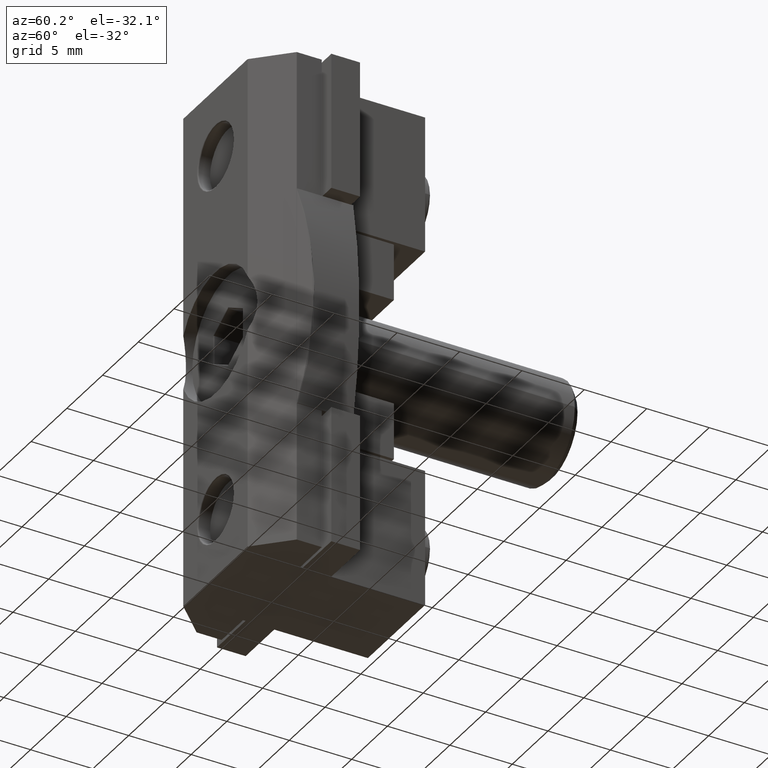
[diagram: clean part render]
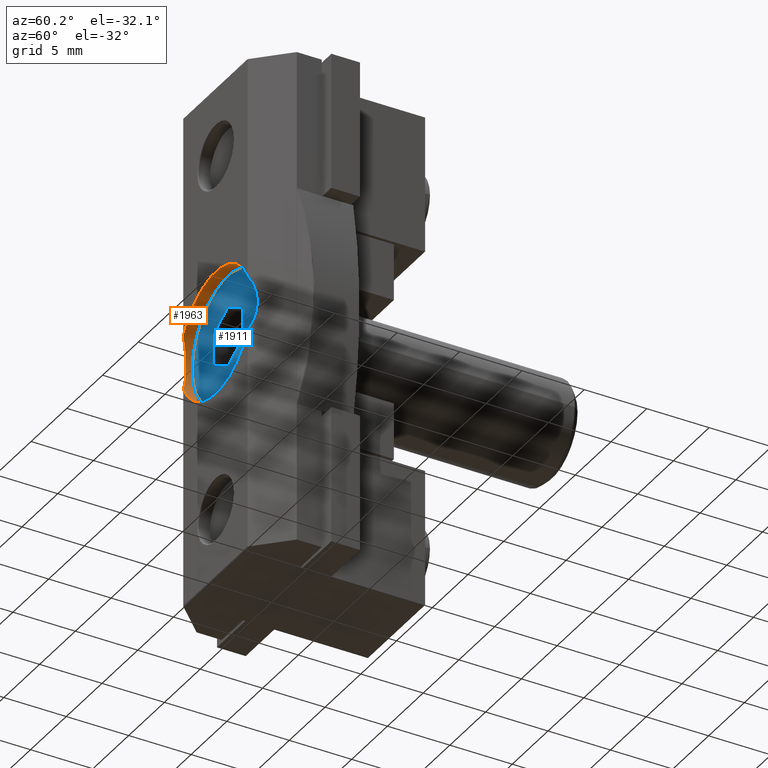
[diagram: same view with the hole feature highlighted: cylindrical wall and planar end face, labeled with their STEP entity ids]
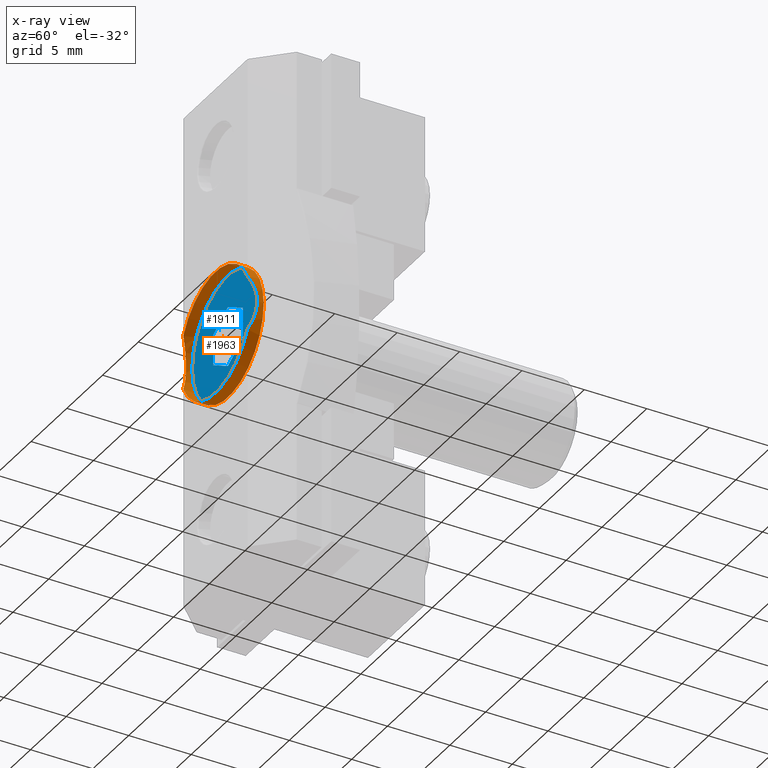
[diagram: x-ray of the same camera — body ghosted, the hole faces saturated]
A machine part, auxiliary view. The highlighted faces form one hole feature of diameter 10 mm: the cylindrical wall (entity #1963, orange) and its adjacent planar end face (entity #1911, blue) — they share a circular edge in the B-rep.
The next image is the same camera in x-ray (body ghosted, the hole faces saturated) — the bore reads through the body.
Wall:
#38=CIRCLE('',#2049,5.);
#57=CIRCLE('',#2107,5.);
#65=CIRCLE('',#2127,5.);
#209=FACE_OUTER_BOUND('',#327,.T.);
#327=EDGE_LOOP('',(#1603,#1604,#1605,#1606,#1607,#1608,#1609,#1610));
#400=ELLIPSE('',#2143,7.07106781186548,5.);
#401=ELLIPSE('',#2144,7.07106781186548,5.);
#402=ELLIPSE('',#2145,7.07106781186548,5.);
#512=LINE('',#3179,#731);
#731=VECTOR('',#2534,5.);
#857=VERTEX_POINT('',#2804);
#905=VERTEX_POINT('',#2951);
#906=VERTEX_POINT('',#2952);
#939=VERTEX_POINT('',#3116);
#940=VERTEX_POINT('',#3117);
#957=VERTEX_POINT('',#3177);
#1049=EDGE_CURVE('',#857,#857,#38,.T.);
#1121=EDGE_CURVE('',#905,#906,#57,.T.);
#1164=EDGE_CURVE('',#939,#940,#65,.T.);
#1191=EDGE_CURVE('',#906,#939,#400,.T.);
#1192=EDGE_CURVE('',#957,#905,#401,.T.);
#1193=EDGE_CURVE('',#957,#857,#512,.T.);
#1194=EDGE_CURVE('',#940,#957,#402,.T.);
#1603=ORIENTED_EDGE('',*,*,#1191,.F.);
#1604=ORIENTED_EDGE('',*,*,#1121,.F.);
#1605=ORIENTED_EDGE('',*,*,#1192,.F.);
#1606=ORIENTED_EDGE('',*,*,#1193,.T.);
#1607=ORIENTED_EDGE('',*,*,#1049,.T.);
#1608=ORIENTED_EDGE('',*,*,#1193,.F.);
#1609=ORIENTED_EDGE('',*,*,#1194,.F.);
#1610=ORIENTED_EDGE('',*,*,#1164,.F.);
#1899=CYLINDRICAL_SURFACE('',#2142,5.);
#1963=ADVANCED_FACE('',(#209),#1899,.F.);
#2049=AXIS2_PLACEMENT_3D('',#2805,#2252,#2253);
#2107=AXIS2_PLACEMENT_3D('',#2953,#2409,#2410);
#2127=AXIS2_PLACEMENT_3D('',#3118,#2472,#2473);
#2142=AXIS2_PLACEMENT_3D('',#3175,#2528,#2529);
#2143=AXIS2_PLACEMENT_3D('',#3176,#2530,#2531);
#2144=AXIS2_PLACEMENT_3D('',#3178,#2532,#2533);
#2145=AXIS2_PLACEMENT_3D('',#3180,#2535,#2536);
#2252=DIRECTION('center_axis',(0.,1.,0.));
#2253=DIRECTION('ref_axis',(-1.,0.,0.));
#2409=DIRECTION('center_axis',(0.,1.,0.));
#2410=DIRECTION('ref_axis',(-1.,0.,0.));
#2472=DIRECTION('center_axis',(0.,1.,0.));
#2473=DIRECTION('ref_axis',(-1.,0.,0.));
#2528=DIRECTION('center_axis',(0.,1.,0.));
#2529=DIRECTION('ref_axis',(-1.,0.,0.));
#2530=DIRECTION('center_axis',(0.707106781186548,0.707106781186548,0.));
#2531=DIRECTION('ref_axis',(-0.707106781186547,0.707106781186547,0.));
#2532=DIRECTION('center_axis',(-0.707106781186548,0.707106781186548,0.));
#2533=DIRECTION('ref_axis',(-0.707106781186547,-0.707106781186547,0.));
#2534=DIRECTION('',(0.,1.,0.));
#2535=DIRECTION('center_axis',(-0.707106781186548,0.707106781186548,0.));
#2536=DIRECTION('ref_axis',(-0.707106781186547,-0.707106781186547,0.));
#2804=CARTESIAN_POINT('',(5.,-3.5,6.12323399573677E-16));
#2805=CARTESIAN_POINT('Origin',(0.,-3.5,0.));
#2951=CARTESIAN_POINT('',(4.5,-4.5,-2.17944947177034));
#2952=CARTESIAN_POINT('',(-4.5,-4.5,-2.17944947177034));
#2953=CARTESIAN_POINT('Origin',(0.,-4.5,0.));
#3116=CARTESIAN_POINT('',(-4.5,-4.5,2.17944947177034));
#3117=CARTESIAN_POINT('',(4.5,-4.5,2.17944947177034));
#3118=CARTESIAN_POINT('Origin',(0.,-4.5,0.));
#3175=CARTESIAN_POINT('Origin',(0.,-4.5,0.));
#3176=CARTESIAN_POINT('Origin',(0.,-9.,0.));
#3177=CARTESIAN_POINT('',(5.,-4.,-6.12323399573677E-16));
#3178=CARTESIAN_POINT('Origin',(0.,-9.,0.));
#3179=CARTESIAN_POINT('',(5.,-4.5,-6.12323399573677E-16));
#3180=CARTESIAN_POINT('Origin',(0.,-9.,0.));
End face:
#30=FACE_BOUND('',#269,.T.);
#38=CIRCLE('',#2049,5.);
#73=PLANE('',#2048);
#157=FACE_OUTER_BOUND('',#268,.T.);
#268=EDGE_LOOP('',(#1344));
#269=EDGE_LOOP('',(#1345,#1346,#1347,#1348,#1349,#1350));
#403=LINE('',#2756,#622);
#406=LINE('',#2766,#625);
#408=LINE('',#2772,#627);
#409=LINE('',#2776,#628);
#412=LINE('',#2784,#631);
#414=LINE('',#2788,#633);
#622=VECTOR('',#2203,10.);
#625=VECTOR('',#2212,10.);
#627=VECTOR('',#2218,10.);
#628=VECTOR('',#2223,10.);
#631=VECTOR('',#2230,10.);
#633=VECTOR('',#2236,10.);
#841=VERTEX_POINT('',#2754);
#842=VERTEX_POINT('',#2755);
#846=VERTEX_POINT('',#2765);
#848=VERTEX_POINT('',#2771);
#849=VERTEX_POINT('',#2775);
#852=VERTEX_POINT('',#2783);
#857=VERTEX_POINT('',#2804);
#1024=EDGE_CURVE('',#841,#842,#403,.T.);
#1029=EDGE_CURVE('',#842,#846,#406,.T.);
#1032=EDGE_CURVE('',#846,#848,#408,.T.);
#1034=EDGE_CURVE('',#849,#841,#409,.T.);
#1038=EDGE_CURVE('',#848,#852,#412,.T.);
#1041=EDGE_CURVE('',#852,#849,#414,.T.);
#1049=EDGE_CURVE('',#857,#857,#38,.T.);
#1344=ORIENTED_EDGE('',*,*,#1049,.F.);
#1345=ORIENTED_EDGE('',*,*,#1024,.F.);
#1346=ORIENTED_EDGE('',*,*,#1034,.F.);
#1347=ORIENTED_EDGE('',*,*,#1041,.F.);
#1348=ORIENTED_EDGE('',*,*,#1038,.F.);
#1349=ORIENTED_EDGE('',*,*,#1032,.F.);
#1350=ORIENTED_EDGE('',*,*,#1029,.F.);
#1911=ADVANCED_FACE('',(#157,#30),#73,.F.);
#2048=AXIS2_PLACEMENT_3D('',#2803,#2250,#2251);
#2049=AXIS2_PLACEMENT_3D('',#2805,#2252,#2253);
#2203=DIRECTION('',(0.86602540378444,0.,-0.499999999999997));
#2212=DIRECTION('',(0.866025403784438,0.,0.500000000000001));
#2218=DIRECTION('',(-9.61481343191782E-16,0.,1.));
#2223=DIRECTION('',(1.20185167898972E-16,0.,-1.));
#2230=DIRECTION('',(-0.866025403784439,0.,0.499999999999999));
#2236=DIRECTION('',(-0.866025403784439,0.,-0.5));
#2250=DIRECTION('center_axis',(0.,1.,0.));
#2251=DIRECTION('ref_axis',(0.,0.,1.));
#2252=DIRECTION('center_axis',(0.,1.,0.));
#2253=DIRECTION('ref_axis',(-1.,0.,0.));
#2754=CARTESIAN_POINT('',(-2.1,-3.5,-1.21243556529822));
#2755=CARTESIAN_POINT('',(1.94289029309402E-15,-3.5,-2.42487113059643));
#2756=CARTESIAN_POINT('',(-0.549999999999997,-3.5,-2.10732848254214));
#2765=CARTESIAN_POINT('',(2.1,-3.5,-1.21243556529821));
#2766=CARTESIAN_POINT('',(1.55,-3.5,-1.52997821335251));
#2771=CARTESIAN_POINT('',(2.1,-3.5,1.21243556529822));
#2772=CARTESIAN_POINT('',(2.1,-3.5,0.577350269189628));
#2775=CARTESIAN_POINT('',(-2.1,-3.5,1.21243556529821));
#2776=CARTESIAN_POINT('',(-2.1,-3.5,-0.577350269189629));
#2783=CARTESIAN_POINT('',(0.,-3.5,2.42487113059643));
#2784=CARTESIAN_POINT('',(0.549999999999999,-3.5,2.10732848254214));
#2788=CARTESIAN_POINT('',(-1.55,-3.5,1.52997821335251));
#2803=CARTESIAN_POINT('Origin',(-2.36064120735332E-16,-3.5,0.));
#2804=CARTESIAN_POINT('',(5.,-3.5,6.12323399573677E-16));
#2805=CARTESIAN_POINT('Origin',(0.,-3.5,0.));